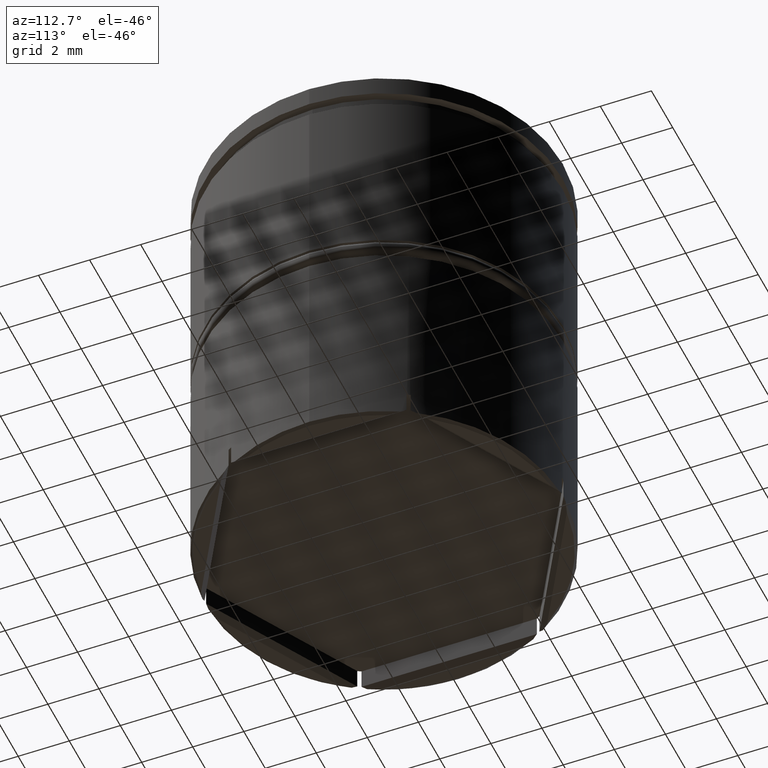
[diagram: clean part render]
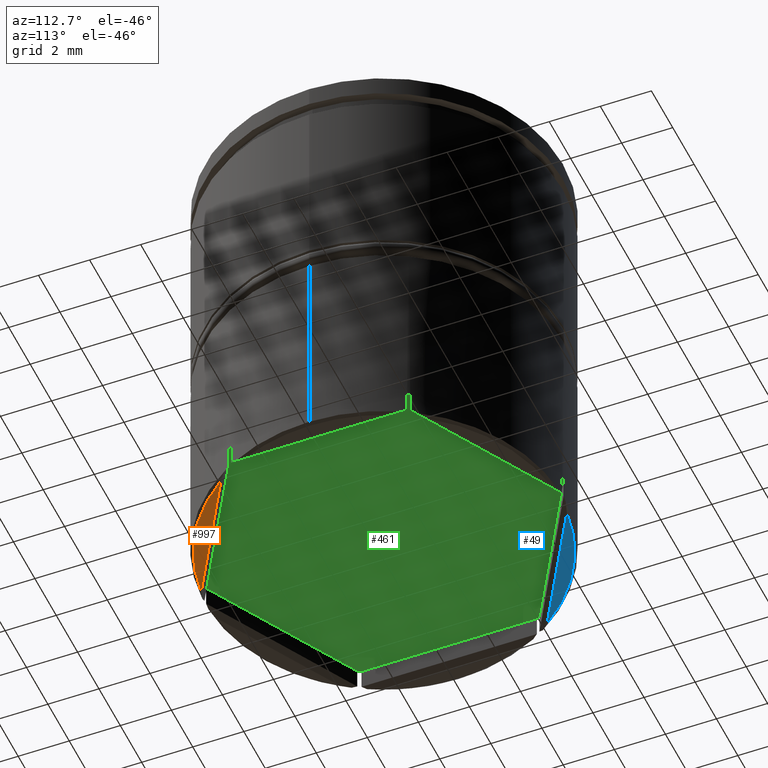
[diagram: same view with three faces highlighted in distinct colors, each labeled with its STEP entity id]
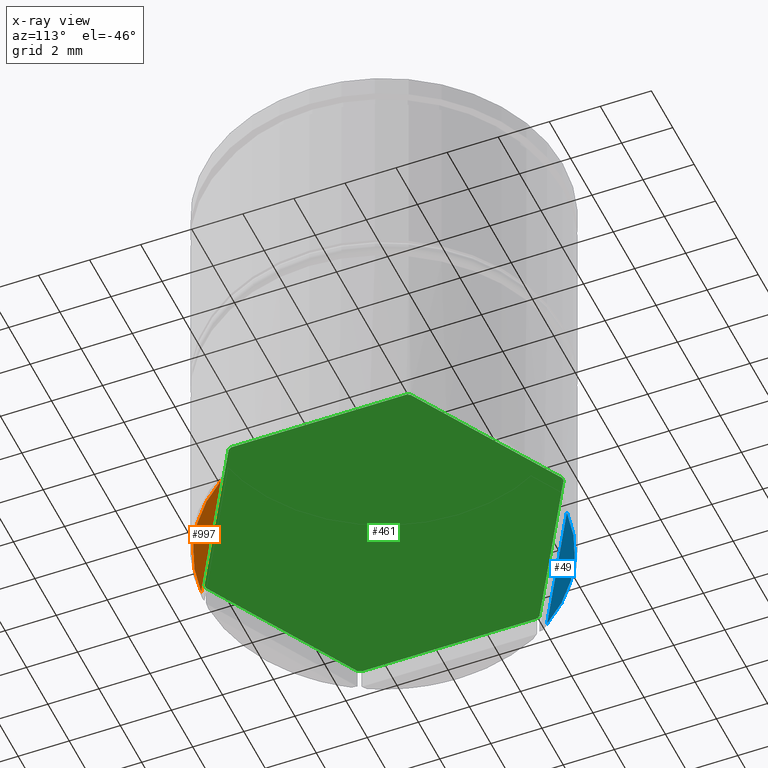
[diagram: x-ray of the same camera — body ghosted, the three highlighted faces saturated]
A machine part, auxiliary view with three faces highlighted in distinct colors.
The next image is the same camera in x-ray (body ghosted, the three faces saturated) — at least one of them is partly hidden behind the body in this view.
Their STEP definitions:

[orange] entity #997 — the highlighted planar face has unit normal (0, 0, -1).
#59 = VERTEX_POINT ( 'NONE', #793 ) ;
#63 = LINE ( 'NONE', #1076, #1372 ) ;
#124 = CARTESIAN_POINT ( 'NONE',  ( 0.000000000000000000, 7.000000000000000888, -17.50000000000000000 ) ) ;
#276 = AXIS2_PLACEMENT_3D ( 'NONE', #372, #1120, #1504 ) ;
#372 = CARTESIAN_POINT ( 'NONE',  ( 0.000000000000000000, 0.000000000000000000, -17.50000000000000000 ) ) ;
#479 = VERTEX_POINT ( 'NONE', #1174 ) ;
#509 = PLANE ( 'NONE',  #740 ) ;
#625 = FACE_OUTER_BOUND ( 'NONE', #1444, .T. ) ;
#630 = DIRECTION ( 'NONE',  ( -1.000000000000000000, 0.000000000000000000, -0.000000000000000000 ) ) ;
#669 = ORIENTED_EDGE ( 'NONE', *, *, #966, .T. ) ;
#715 = CIRCLE ( 'NONE', #276, 6.900000000000003908 ) ;
#740 = AXIS2_PLACEMENT_3D ( 'NONE', #124, #892, #630 ) ;
#793 = CARTESIAN_POINT ( 'NONE',  ( 5.587211521390793578, -4.048835315894932840, -17.50000000000000000 ) ) ;
#892 = DIRECTION ( 'NONE',  ( 0.000000000000000000, 0.000000000000000000, -1.000000000000000000 ) ) ;
#943 = ORIENTED_EDGE ( 'NONE', *, *, #1379, .T. ) ;
#966 = EDGE_CURVE ( 'NONE', #59, #479, #715, .T. ) ;
#997 = ADVANCED_FACE ( 'NONE', ( #625 ), #509, .T. ) ;
#1076 = CARTESIAN_POINT ( 'NONE',  ( 5.942848008753788491, -3.843508494182256374, -17.50000000000000000 ) ) ;
#1120 = DIRECTION ( 'NONE',  ( 0.000000000000000000, 0.000000000000000000, -1.000000000000000000 ) ) ;
#1174 = CARTESIAN_POINT ( 'NONE',  ( 0.7127884786092059111, -6.863084771788997784, -17.50000000000000000 ) ) ;
#1372 = VECTOR ( 'NONE', #1574, 1000.000000000000000 ) ;
#1379 = EDGE_CURVE ( 'NONE', #479, #59, #63, .T. ) ;
#1444 = EDGE_LOOP ( 'NONE', ( #669, #943 ) ) ;
#1504 = DIRECTION ( 'NONE',  ( -1.000000000000000000, 0.000000000000000000, 0.000000000000000000 ) ) ;
#1574 = DIRECTION ( 'NONE',  ( 0.8660254037844387076, 0.4999999999999998890, 0.000000000000000000 ) ) ;

[blue] entity #49 — the highlighted planar face has unit normal (0, 0, -1).
#5 = AXIS2_PLACEMENT_3D ( 'NONE', #802, #1403, #279 ) ;
#49 = ADVANCED_FACE ( 'NONE', ( #416 ), #1025, .T. ) ;
#70 = VERTEX_POINT ( 'NONE', #157 ) ;
#152 = EDGE_LOOP ( 'NONE', ( #924, #803 ) ) ;
#157 = CARTESIAN_POINT ( 'NONE',  ( -0.7127884786091954750, 6.863084771788998673, -17.50000000000000000 ) ) ;
#169 = AXIS2_PLACEMENT_3D ( 'NONE', #1453, #352, #734 ) ;
#279 = DIRECTION ( 'NONE',  ( -1.000000000000000000, 0.000000000000000000, -0.000000000000000000 ) ) ;
#300 = VERTEX_POINT ( 'NONE', #1161 ) ;
#352 = DIRECTION ( 'NONE',  ( 0.000000000000000000, 0.000000000000000000, -1.000000000000000000 ) ) ;
#383 = EDGE_CURVE ( 'NONE', #70, #300, #847, .T. ) ;
#416 = FACE_OUTER_BOUND ( 'NONE', #152, .T. ) ;
#734 = DIRECTION ( 'NONE',  ( -1.000000000000000000, 0.000000000000000000, 0.000000000000000000 ) ) ;
#756 = CIRCLE ( 'NONE', #169, 6.900000000000003908 ) ;
#801 = EDGE_CURVE ( 'NONE', #300, #70, #756, .T. ) ;
#802 = CARTESIAN_POINT ( 'NONE',  ( 0.000000000000000000, 7.000000000000000888, -17.50000000000000000 ) ) ;
#803 = ORIENTED_EDGE ( 'NONE', *, *, #383, .T. ) ;
#840 = DIRECTION ( 'NONE',  ( -0.8660254037844387076, -0.4999999999999998335, 0.000000000000000000 ) ) ;
#847 = LINE ( 'NONE', #1343, #1262 ) ;
#924 = ORIENTED_EDGE ( 'NONE', *, *, #801, .T. ) ;
#1025 = PLANE ( 'NONE',  #5 ) ;
#1161 = CARTESIAN_POINT ( 'NONE',  ( -5.587211521390800684, 4.048835315894925735, -17.50000000000000000 ) ) ;
#1262 = VECTOR ( 'NONE', #840, 1000.000000000000000 ) ;
#1343 = CARTESIAN_POINT ( 'NONE',  ( -5.942848008753786715, 3.843508494182252377, -17.50000000000000000 ) ) ;
#1403 = DIRECTION ( 'NONE',  ( 0.000000000000000000, 0.000000000000000000, -1.000000000000000000 ) ) ;
#1453 = CARTESIAN_POINT ( 'NONE',  ( 0.000000000000000000, 0.000000000000000000, -17.50000000000000000 ) ) ;

[green] entity #461 — the highlighted planar face has unit normal (0, 0, -1).
#24 = VERTEX_POINT ( 'NONE', #1015 ) ;
#34 = VERTEX_POINT ( 'NONE', #139 ) ;
#35 = EDGE_CURVE ( 'NONE', #311, #34, #1148, .T. ) ;
#39 = VERTEX_POINT ( 'NONE', #645 ) ;
#43 = EDGE_CURVE ( 'NONE', #1059, #314, #647, .T. ) ;
#66 = CARTESIAN_POINT ( 'NONE',  ( 0.000000000000000000, 0.000000000000000000, -16.50000000000000000 ) ) ;
#87 = EDGE_CURVE ( 'NONE', #888, #34, #231, .T. ) ;
#94 = EDGE_CURVE ( 'NONE', #888, #39, #767, .T. ) ;
#109 = AXIS2_PLACEMENT_3D ( 'NONE', #690, #967, #1461 ) ;
#119 = DIRECTION ( 'NONE',  ( -0.000000000000000000, -0.000000000000000000, 1.000000000000000000 ) ) ;
#134 = DIRECTION ( 'NONE',  ( -0.8660254037844385966, -0.4999999999999998890, 0.000000000000000000 ) ) ;
#139 = CARTESIAN_POINT ( 'NONE',  ( -6.023634140239851220, -3.565926491746138183, -16.50000000000000000 ) ) ;
#141 = DIRECTION ( 'NONE',  ( 0.8660254037844385966, -0.5000000000000001110, 0.000000000000000000 ) ) ;
#143 = AXIS2_PLACEMENT_3D ( 'NONE', #384, #906, #664 ) ;
#151 = CARTESIAN_POINT ( 'NONE',  ( 0.000000000000000000, 7.043673284113435962, -16.50000000000000000 ) ) ;
#165 = ORIENTED_EDGE ( 'NONE', *, *, #1314, .F. ) ;
#173 = ORIENTED_EDGE ( 'NONE', *, *, #43, .F. ) ;
#174 = DIRECTION ( 'NONE',  ( -1.000000000000000000, 0.000000000000000000, -0.000000000000000000 ) ) ;
#203 = CARTESIAN_POINT ( 'NONE',  ( -0.07636585976015250465, 6.999583434424015316, -16.50000000000000000 ) ) ;
#231 = CIRCLE ( 'NONE', #143, 7.000000000000000888 ) ;
#264 = CARTESIAN_POINT ( 'NONE',  ( -6.100000000000003197, -3.521836642056717537, -16.50000000000000000 ) ) ;
#277 = ORIENTED_EDGE ( 'NONE', *, *, #1100, .T. ) ;
#306 = CARTESIAN_POINT ( 'NONE',  ( 0.000000000000000000, 0.000000000000000000, -16.50000000000000000 ) ) ;
#311 = VERTEX_POINT ( 'NONE', #1040 ) ;
#313 = ORIENTED_EDGE ( 'NONE', *, *, #1320, .T. ) ;
#314 = VERTEX_POINT ( 'NONE', #1013 ) ;
#384 = CARTESIAN_POINT ( 'NONE',  ( 0.000000000000000000, 0.000000000000000000, -16.50000000000000000 ) ) ;
#388 = EDGE_CURVE ( 'NONE', #1326, #443, #1051, .T. ) ;
#392 = DIRECTION ( 'NONE',  ( -1.000000000000000000, 0.000000000000000000, 0.000000000000000000 ) ) ;
#443 = VERTEX_POINT ( 'NONE', #203 ) ;
#461 = ADVANCED_FACE ( 'NONE', ( #811 ), #694, .T. ) ;
#467 = ORIENTED_EDGE ( 'NONE', *, *, #952, .F. ) ;
#498 = CARTESIAN_POINT ( 'NONE',  ( 6.100000000000004086, -3.521836642056718869, -16.50000000000000000 ) ) ;
#503 = CARTESIAN_POINT ( 'NONE',  ( -6.100000000000003197, -3.433656942677875357, -16.50000000000000000 ) ) ;
#510 = CARTESIAN_POINT ( 'NONE',  ( 0.000000000000000000, 0.000000000000000000, -16.50000000000000000 ) ) ;
#533 = CARTESIAN_POINT ( 'NONE',  ( 6.100000000000003197, -3.433656942677874468, -16.50000000000000000 ) ) ;
#552 = AXIS2_PLACEMENT_3D ( 'NONE', #306, #935, #1434 ) ;
#573 = VERTEX_POINT ( 'NONE', #616 ) ;
#616 = CARTESIAN_POINT ( 'NONE',  ( -6.023634140239849444, 3.565926491746141735, -16.50000000000000000 ) ) ;
#636 = VECTOR ( 'NONE', #1052, 1000.000000000000000 ) ;
#637 = DIRECTION ( 'NONE',  ( -0.8660254037844385966, 0.5000000000000001110, 0.000000000000000000 ) ) ;
#645 = CARTESIAN_POINT ( 'NONE',  ( -6.100000000000003197, 3.433656942677875357, -16.50000000000000000 ) ) ;
#647 = CIRCLE ( 'NONE', #739, 7.000000000000000888 ) ;
#664 = DIRECTION ( 'NONE',  ( -1.000000000000000000, -2.664535259100375697E-15, 0.000000000000000000 ) ) ;
#690 = CARTESIAN_POINT ( 'NONE',  ( 0.000000000000000000, 0.000000000000000000, -16.50000000000000000 ) ) ;
#693 = EDGE_LOOP ( 'NONE', ( #1269, #165, #313, #957, #866, #173, #277, #467, #1422, #890, #1182, #925 ) ) ;
#694 = PLANE ( 'NONE',  #1023 ) ;
#698 = AXIS2_PLACEMENT_3D ( 'NONE', #510, #1129, #1512 ) ;
#708 = EDGE_CURVE ( 'NONE', #311, #1546, #1244, .T. ) ;
#739 = AXIS2_PLACEMENT_3D ( 'NONE', #912, #1409, #392 ) ;
#767 = LINE ( 'NONE', #264, #994 ) ;
#806 = CARTESIAN_POINT ( 'NONE',  ( 6.100000000000003197, 3.433656942677876245, -16.50000000000000000 ) ) ;
#811 = FACE_OUTER_BOUND ( 'NONE', #693, .T. ) ;
#844 = CARTESIAN_POINT ( 'NONE',  ( -6.100000000000003197, 3.521836642056718869, -16.50000000000000000 ) ) ;
#866 = ORIENTED_EDGE ( 'NONE', *, *, #1092, .T. ) ;
#880 = CIRCLE ( 'NONE', #109, 7.000000000000000888 ) ;
#888 = VERTEX_POINT ( 'NONE', #503 ) ;
#890 = ORIENTED_EDGE ( 'NONE', *, *, #708, .F. ) ;
#906 = DIRECTION ( 'NONE',  ( -0.000000000000000000, -0.000000000000000000, 1.000000000000000000 ) ) ;
#908 = EDGE_CURVE ( 'NONE', #24, #1546, #1367, .T. ) ;
#912 = CARTESIAN_POINT ( 'NONE',  ( 0.000000000000000000, 0.000000000000000000, -16.50000000000000000 ) ) ;
#925 = ORIENTED_EDGE ( 'NONE', *, *, #87, .F. ) ;
#929 = VECTOR ( 'NONE', #141, 1000.000000000000000 ) ;
#935 = DIRECTION ( 'NONE',  ( -0.000000000000000000, -0.000000000000000000, 1.000000000000000000 ) ) ;
#952 = EDGE_CURVE ( 'NONE', #24, #1545, #1362, .T. ) ;
#957 = ORIENTED_EDGE ( 'NONE', *, *, #388, .F. ) ;
#967 = DIRECTION ( 'NONE',  ( -0.000000000000000000, -0.000000000000000000, 1.000000000000000000 ) ) ;
#994 = VECTOR ( 'NONE', #1264, 1000.000000000000000 ) ;
#995 = AXIS2_PLACEMENT_3D ( 'NONE', #1390, #119, #1004 ) ;
#1004 = DIRECTION ( 'NONE',  ( -1.000000000000000000, 5.329070518200751394E-14, 0.000000000000000000 ) ) ;
#1013 = CARTESIAN_POINT ( 'NONE',  ( 6.023634140239852108, 3.565926491746137295, -16.50000000000000000 ) ) ;
#1015 = CARTESIAN_POINT ( 'NONE',  ( 6.023634140239849444, -3.565926491746140847, -16.50000000000000000 ) ) ;
#1023 = AXIS2_PLACEMENT_3D ( 'NONE', #66, #1303, #174 ) ;
#1040 = CARTESIAN_POINT ( 'NONE',  ( -0.07636585976015164423, -6.999583434424015316, -16.50000000000000000 ) ) ;
#1043 = CARTESIAN_POINT ( 'NONE',  ( 6.100000000000003197, 3.521836642056716205, -16.50000000000000000 ) ) ;
#1051 = CIRCLE ( 'NONE', #552, 7.000000000000000888 ) ;
#1052 = DIRECTION ( 'NONE',  ( 1.231405408800950026E-16, -1.000000000000000000, 0.000000000000000000 ) ) ;
#1059 = VERTEX_POINT ( 'NONE', #806 ) ;
#1092 = EDGE_CURVE ( 'NONE', #1326, #314, #1429, .T. ) ;
#1100 = EDGE_CURVE ( 'NONE', #1059, #1545, #1179, .T. ) ;
#1129 = DIRECTION ( 'NONE',  ( -0.000000000000000000, -0.000000000000000000, 1.000000000000000000 ) ) ;
#1148 = LINE ( 'NONE', #1523, #1436 ) ;
#1155 = CARTESIAN_POINT ( 'NONE',  ( 0.07636585976015337895, -6.999583434424016204, -16.50000000000000000 ) ) ;
#1179 = LINE ( 'NONE', #1043, #636 ) ;
#1182 = ORIENTED_EDGE ( 'NONE', *, *, #35, .T. ) ;
#1244 = CIRCLE ( 'NONE', #698, 7.000000000000000888 ) ;
#1249 = VECTOR ( 'NONE', #134, 1000.000000000000227 ) ;
#1264 = DIRECTION ( 'NONE',  ( 0.000000000000000000, 1.000000000000000000, 0.000000000000000000 ) ) ;
#1269 = ORIENTED_EDGE ( 'NONE', *, *, #94, .T. ) ;
#1303 = DIRECTION ( 'NONE',  ( 0.000000000000000000, 0.000000000000000000, -1.000000000000000000 ) ) ;
#1314 = EDGE_CURVE ( 'NONE', #573, #39, #880, .T. ) ;
#1320 = EDGE_CURVE ( 'NONE', #573, #443, #1340, .T. ) ;
#1326 = VERTEX_POINT ( 'NONE', #1467 ) ;
#1340 = LINE ( 'NONE', #844, #1454 ) ;
#1362 = CIRCLE ( 'NONE', #995, 7.000000000000000888 ) ;
#1367 = LINE ( 'NONE', #498, #1249 ) ;
#1390 = CARTESIAN_POINT ( 'NONE',  ( 0.000000000000000000, 0.000000000000000000, -16.50000000000000000 ) ) ;
#1409 = DIRECTION ( 'NONE',  ( -0.000000000000000000, -0.000000000000000000, 1.000000000000000000 ) ) ;
#1422 = ORIENTED_EDGE ( 'NONE', *, *, #908, .T. ) ;
#1429 = LINE ( 'NONE', #151, #929 ) ;
#1434 = DIRECTION ( 'NONE',  ( -1.000000000000000000, -9.592326932761352509E-14, 0.000000000000000000 ) ) ;
#1436 = VECTOR ( 'NONE', #637, 1000.000000000000114 ) ;
#1454 = VECTOR ( 'NONE', #1554, 1000.000000000000000 ) ;
#1461 = DIRECTION ( 'NONE',  ( -1.000000000000000000, 5.861977570020826533E-14, 0.000000000000000000 ) ) ;
#1467 = CARTESIAN_POINT ( 'NONE',  ( 0.07636585976015120014, 6.999583434424016204, -16.50000000000000000 ) ) ;
#1512 = DIRECTION ( 'NONE',  ( -1.000000000000000000, 0.000000000000000000, 0.000000000000000000 ) ) ;
#1523 = CARTESIAN_POINT ( 'NONE',  ( 4.363473247675550039E-16, -7.043673284113437738, -16.50000000000000000 ) ) ;
#1545 = VERTEX_POINT ( 'NONE', #533 ) ;
#1546 = VERTEX_POINT ( 'NONE', #1155 ) ;
#1554 = DIRECTION ( 'NONE',  ( 0.8660254037844387076, 0.4999999999999998335, 0.000000000000000000 ) ) ;